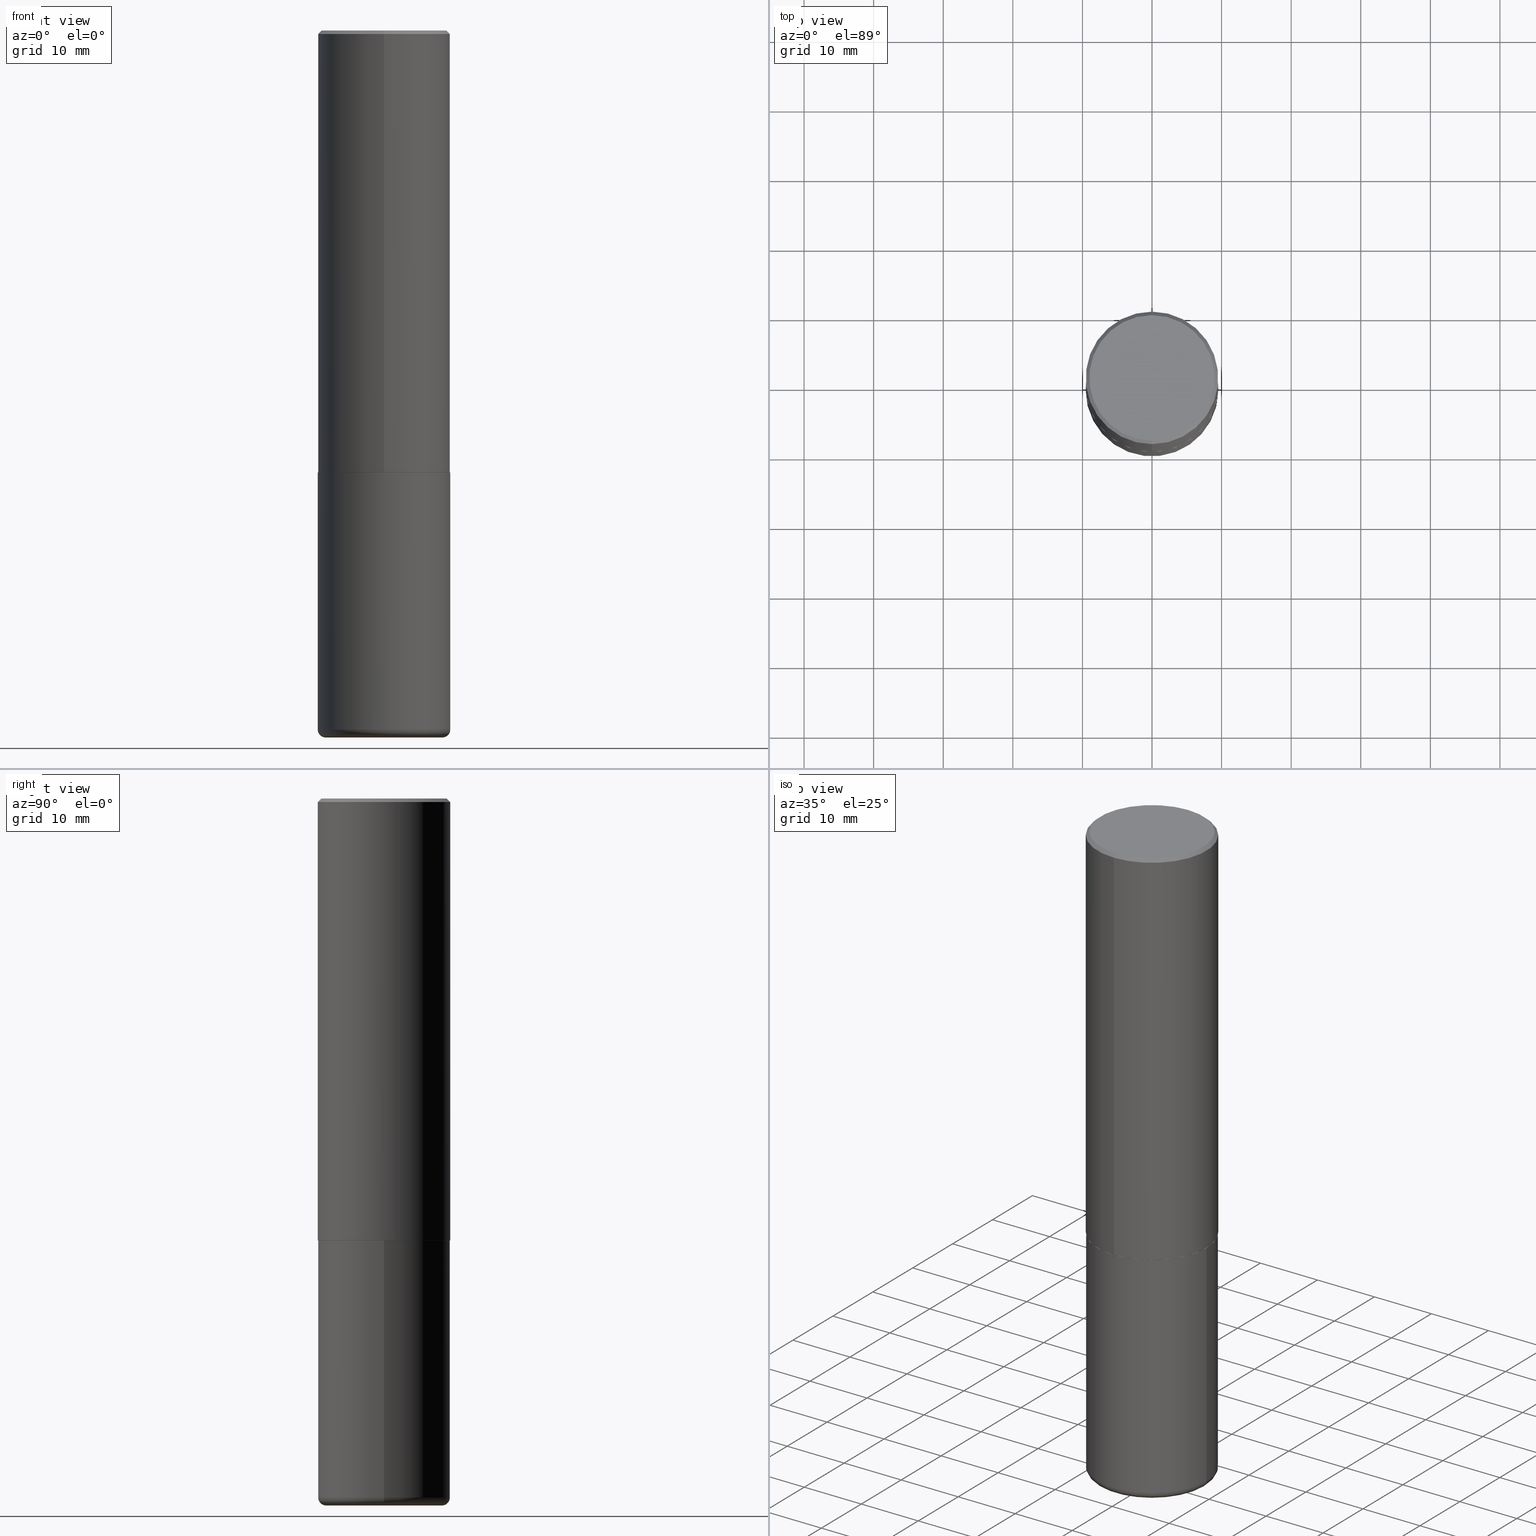
[diagram: canonical four-view strip — front | top / right | iso, engineering-drawing reading convention]
A machine part, canonical four-view strip (front | top / right | iso — engineering-drawing reading convention). The complete STEP part file that produces these views, byte-faithful:
ISO-10303-21;
HEADER;
FILE_DESCRIPTION (( 'STEP AP203' ),
    '1' );
FILE_NAME ('38346.STEP',
    '2024-03-03T00:01:08',
    ( '' ),
    ( '' ),
    'SwSTEP 2.0',
    'SolidWorks 2023',
    '' );
FILE_SCHEMA (( 'CONFIG_CONTROL_DESIGN' ));
ENDSEC;

DATA;
#1 = ORIENTED_EDGE ( 'NONE', *, *, #35, .T. ) ;
#2 = VERTEX_POINT ( 'NONE', #404 ) ;
#3 = ORIENTED_EDGE ( 'NONE', *, *, #188, .T. ) ;
#4 = AXIS2_PLACEMENT_3D ( 'NONE', #88, #50, #18 ) ;
#5 = AXIS2_PLACEMENT_3D ( 'NONE', #157, #190, #75 ) ;
#6 = EDGE_CURVE ( 'NONE', #2, #358, #401, .T. ) ;
#7 = EDGE_LOOP ( 'NONE', ( #323, #64, #326, #268 ) ) ;
#8 = VERTEX_POINT ( 'NONE', #113 ) ;
#9 = CARTESIAN_POINT ( 'NONE',  ( 2.618611004132350411E-15, 0.3749999999999999445, -0.02000000000000139513 ) ) ;
#10 = CARTESIAN_POINT ( 'NONE',  ( 2.618611004132350411E-15, 0.3749999999999999445, -0.02000000000000139513 ) ) ;
#11 = CIRCLE ( 'NONE', #20, 0.3300000000000000155 ) ;
#12 = MECHANICAL_CONTEXT ( 'NONE', #218, 'mechanical' ) ;
#13 = CARTESIAN_POINT ( 'NONE',  ( 0.000000000000000000, 0.000000000000000000, 0.000000000000000000 ) ) ;
#14 = DIRECTION ( 'NONE',  ( -6.982962677686266711E-15, -1.000000000000000000, 2.921762560068730595E-15 ) ) ;
#15 = DIRECTION ( 'NONE',  ( 1.000000000000000000, -6.982962677686257244E-15, 0.000000000000000000 ) ) ;
#16 = EDGE_CURVE ( 'NONE', #68, #153, #11, .T. ) ;
#17 = DIMENSIONAL_EXPONENTS ( 1.000000000000000000, 0.000000000000000000, 0.000000000000000000, 0.000000000000000000, 0.000000000000000000, 0.000000000000000000, 0.000000000000000000 ) ;
#18 = DIRECTION ( 'NONE',  ( -6.982962677686265922E-15, -1.000000000000000000, 3.490407148774155485E-15 ) ) ;
#19 = DIRECTION ( 'NONE',  ( -2.446218909101186334E-29, 3.490407148774155485E-15, 1.000000000000000000 ) ) ;
#20 = AXIS2_PLACEMENT_3D ( 'NONE', #45, #111, #303 ) ;
#21 = DIRECTION ( 'NONE',  ( -2.445468806185136597E-29, 3.491481338843145583E-15, 1.000000000000000000 ) ) ;
#22 = LOCAL_TIME ( 19, 1, 8.000000000000000000, #174 ) ;
#23 = DIRECTION ( 'NONE',  ( -2.446218909101186334E-29, 3.490407148774155485E-15, 1.000000000000000000 ) ) ;
#24 = DIRECTION ( 'NONE',  ( 2.438088387897960049E-29, -3.491481338843145188E-15, -1.000000000000000000 ) ) ;
#25 = APPROVAL ( #89, 'UNSPECIFIED' ) ;
#26 = DIRECTION ( 'NONE',  ( -2.445468806185136597E-29, 3.491481338843145583E-15, 1.000000000000000000 ) ) ;
#27 = CARTESIAN_POINT ( 'NONE',  ( 1.440645524434531058E-28, -7.343263552550124896E-15, -4.000000000000000000 ) ) ;
#28 = CARTESIAN_POINT ( 'NONE',  ( 0.000000000000000000, 0.000000000000000000, 0.000000000000000000 ) ) ;
#29 = CALENDAR_DATE ( 2024, 2, 3 ) ;
#30 = CIRCLE ( 'NONE', #316, 0.3750000000000000555 ) ;
#31 = LINE ( 'NONE', #124, #62 ) ;
#32 = PERSON_AND_ORGANIZATION ( #97, #140 ) ;
#33 = DIRECTION ( 'NONE',  ( -1.000000000000000000, 6.982962677686265922E-15, -4.876176775795935793E-29 ) ) ;
#34 = AXIS2_PLACEMENT_3D ( 'NONE', #311, #258, #347 ) ;
#35 = EDGE_CURVE ( 'NONE', #160, #394, #69, .T. ) ;
#36 = LOCAL_TIME ( 19, 1, 8.000000000000000000, #243 ) ;
#37 = VERTEX_POINT ( 'NONE', #10 ) ;
#38 = ORIENTED_EDGE ( 'NONE', *, *, #179, .F. ) ;
#39 = VERTEX_POINT ( 'NONE', #77 ) ;
#40 = VECTOR ( 'NONE', #275, 39.37007874015748143 ) ;
#41 = EDGE_LOOP ( 'NONE', ( #409, #397, #266, #392 ) ) ;
#42 = CARTESIAN_POINT ( 'NONE',  ( 4.892437818202393302E-31, -6.980814297548341687E-17, -0.02000000000000008715 ) ) ;
#43 = DIRECTION ( 'NONE',  ( 7.105427357601001859E-15, 1.000000000000000000, -3.491481338843145583E-15 ) ) ;
#44 = APPLICATION_PROTOCOL_DEFINITION ( 'international standard', 'config_control_design', 1994, #218 ) ;
#45 = CARTESIAN_POINT ( 'NONE',  ( 9.781875224740545266E-29, -1.396592535537258075E-14, -3.999999999999999556 ) ) ;
#46 = UNCERTAINTY_MEASURE_WITH_UNIT (LENGTH_MEASURE( 1.000000000000000082E-05 ), #363, 'distance_accuracy_value', 'NONE');
#47 = PRODUCT_DEFINITION ( 'UNKNOWN', '', #325, #196 ) ;
#48 = CIRCLE ( 'NONE', #333, 0.3750000000000002776 ) ;
#49 = CARTESIAN_POINT ( 'NONE',  ( -0.3749999999999999445, -1.114427343602426500E-14, -3.954999999999999627 ) ) ;
#50 = DIRECTION ( 'NONE',  ( -2.446218909101186334E-29, 3.490407148774155485E-15, 1.000000000000000000 ) ) ;
#51 = LINE ( 'NONE', #170, #223 ) ;
#52 = DIRECTION ( 'NONE',  ( 6.982962677686265922E-15, 1.000000000000000000, -3.494488891895536035E-15 ) ) ;
#53 = DIRECTION ( 'NONE',  ( -2.446218909101186334E-29, 3.490407148774155485E-15, 1.000000000000000000 ) ) ;
#54 = PERSON_AND_ORGANIZATION ( #97, #140 ) ;
#55 = AXIS2_PLACEMENT_3D ( 'NONE', #171, #43, #274 ) ;
#56 = CIRCLE ( 'NONE', #5, 0.3750000000000000555 ) ;
#57 = APPLICATION_PROTOCOL_DEFINITION ( 'international standard', 'config_control_design', 1994, #199 ) ;
#58 = CALENDAR_DATE ( 2024, 2, 3 ) ;
#59 = APPROVAL_STATUS ( 'not_yet_approved' ) ;
#60 = ADVANCED_FACE ( 'NONE', ( #203 ), #343, .T. ) ;
#61 = CARTESIAN_POINT ( 'NONE',  ( 2.478951750578626181E-15, 0.3550000000000002598, -1.371609093745184381E-15 ) ) ;
#62 = VECTOR ( 'NONE', #414, 39.37007874015748143 ) ;
#63 = CIRCLE ( 'NONE', #263, 0.3750000000000000555 ) ;
#64 = ORIENTED_EDGE ( 'NONE', *, *, #386, .T. ) ;
#65 = ORIENTED_EDGE ( 'NONE', *, *, #346, .T. ) ;
#66 = EDGE_CURVE ( 'NONE', #8, #299, #156, .T. ) ;
#67 = ORIENTED_EDGE ( 'NONE', *, *, #415, .T. ) ;
#68 = VERTEX_POINT ( 'NONE', #211 ) ;
#69 = CIRCLE ( 'NONE', #289, 0.3739999999999999991 ) ;
#70 = CARTESIAN_POINT ( 'NONE',  ( 6.483192248959793905E-45, -9.250595066719118931E-31, -2.650291118607169846E-16 ) ) ;
#71 = ORIENTED_EDGE ( 'NONE', *, *, #403, .T. ) ;
#72 = FACE_OUTER_BOUND ( 'NONE', #238, .T. ) ;
#73 = DIRECTION ( 'NONE',  ( 2.446218909101186334E-29, -3.490407148774155485E-15, -1.000000000000000000 ) ) ;
#74 = PERSON_AND_ORGANIZATION ( #97, #140 ) ;
#75 = DIRECTION ( 'NONE',  ( -6.982962677686265922E-15, -1.000000000000000000, 3.494488891895536035E-15 ) ) ;
#76 = CARTESIAN_POINT ( 'NONE',  ( 0.000000000000000000, 0.000000000000000000, 0.000000000000000000 ) ) ;
#77 = CARTESIAN_POINT ( 'NONE',  ( -2.618611004132290852E-15, -0.3750000000000090483, -2.498999999999998778 ) ) ;
#78 =( NAMED_UNIT ( * ) SI_UNIT ( $, .STERADIAN. ) SOLID_ANGLE_UNIT ( ) );
#79 = VECTOR ( 'NONE', #87, 39.37007874015748854 ) ;
#80 = CYLINDRICAL_SURFACE ( 'NONE', #227, 0.3750000000000001665 ) ;
#81 = FACE_OUTER_BOUND ( 'NONE', #158, .T. ) ;
#82 = PERSON_AND_ORGANIZATION_ROLE ( 'design_supplier' ) ;
#83 = EDGE_CURVE ( 'NONE', #153, #228, #194, .T. ) ;
#84 = DIRECTION ( 'NONE',  ( 1.000000000000000000, -6.982962677686267499E-15, 0.000000000000000000 ) ) ;
#85 = PLANE ( 'NONE',  #257 ) ;
#86 = PERSON_AND_ORGANIZATION ( #97, #140 ) ;
#87 = DIRECTION ( 'NONE',  ( 5.024295867787889629E-15, 0.7071067811865257013, 0.7071067811865691111 ) ) ;
#88 = CARTESIAN_POINT ( 'NONE',  ( 6.483192248959793905E-45, -9.250595066719118931E-31, -2.650291118607169846E-16 ) ) ;
#89 = APPROVAL_STATUS ( 'not_yet_approved' ) ;
#90 = AXIS2_PLACEMENT_3D ( 'NONE', #28, #150, #284 ) ;
#91 = DIRECTION ( 'NONE',  ( 2.438088387897960049E-29, -3.491481338843145188E-15, -1.000000000000000000 ) ) ;
#92 = APPROVAL_DATE_TIME ( #385, #25 ) ;
#93 = DIRECTION ( 'NONE',  ( -2.446218909101186334E-29, 3.490407148774155485E-15, 1.000000000000000000 ) ) ;
#94 = CC_DESIGN_DATE_AND_TIME_ASSIGNMENT ( #177, #183, ( #242 ) ) ;
#95 = COORDINATED_UNIVERSAL_TIME_OFFSET ( 5, 0, .BEHIND. ) ;
#96 = PLANE ( 'NONE',  #366 ) ;
#97 = PERSON ( 'UNSPECIFIED', 'UNSPECIFIED', 'UNSPECIFIED', ('UNSPECIFIED'), ('UNSPECIFIED'), ('UNSPECIFIED') ) ;
#98 = CARTESIAN_POINT ( 'NONE',  ( 6.115547272752966956E-29, -8.726017871935389897E-15, -2.500000000000000000 ) ) ;
#99 = CARTESIAN_POINT ( 'NONE',  ( 2.657429831742835431E-15, 0.3739999999999912839, -2.500000000000001332 ) ) ;
#100 = CONICAL_SURFACE ( 'NONE', #145, 0.3750000000000000555, 0.7853981633974473908 ) ;
#101 = LINE ( 'NONE', #390, #350 ) ;
#102 = EDGE_LOOP ( 'NONE', ( #231, #105 ) ) ;
#103 = CONICAL_SURFACE ( 'NONE', #115, 0.3739999999999999991, 0.7853981633974141952 ) ;
#104 = ORIENTED_EDGE ( 'NONE', *, *, #346, .F. ) ;
#105 = ORIENTED_EDGE ( 'NONE', *, *, #285, .F. ) ;
#106 = ORIENTED_EDGE ( 'NONE', *, *, #188, .F. ) ;
#107 = ORIENTED_EDGE ( 'NONE', *, *, #255, .T. ) ;
#108 = EDGE_CURVE ( 'NONE', #358, #234, #30, .T. ) ;
#109 = CARTESIAN_POINT ( 'NONE',  ( -0.3750000000000000555, -8.604220762015875546E-15, -2.499999999999999556 ) ) ;
#110 = CARTESIAN_POINT ( 'NONE',  ( 6.115547272752966956E-29, -8.726017871935389897E-15, -2.500000000000000000 ) ) ;
#111 = DIRECTION ( 'NONE',  ( -2.445468806185136597E-29, 3.491481338843145583E-15, 1.000000000000000000 ) ) ;
#112 = DIRECTION ( 'NONE',  ( -2.446218909101186334E-29, 3.490407148774155485E-15, 1.000000000000000000 ) ) ;
#113 = CARTESIAN_POINT ( 'NONE',  ( 2.548781377355488296E-15, 0.3550000000000002598, -1.504123649675543292E-15 ) ) ;
#114 = EDGE_CURVE ( 'NONE', #39, #144, #131, .T. ) ;
#115 = AXIS2_PLACEMENT_3D ( 'NONE', #416, #254, #417 ) ;
#116 = FACE_OUTER_BOUND ( 'NONE', #362, .T. ) ;
#117 = FACE_OUTER_BOUND ( 'NONE', #396, .T. ) ;
#118 = PERSON_AND_ORGANIZATION ( #97, #140 ) ;
#119 = ORIENTED_EDGE ( 'NONE', *, *, #83, .F. ) ;
#120 = PERSON_AND_ORGANIZATION ( #97, #140 ) ;
#121 = TOROIDAL_SURFACE ( 'NONE', #34, 0.3300000000000000155, 0.04499999999999982486 ) ;
#122 = ADVANCED_FACE ( 'NONE', ( #81 ), #269, .F. ) ;
#123 = CALENDAR_DATE ( 2024, 2, 3 ) ;
#124 = CARTESIAN_POINT ( 'NONE',  ( -2.572686749164323547E-15, -0.3750000000000001110, -0.01999999999999877570 ) ) ;
#125 = FACE_OUTER_BOUND ( 'NONE', #290, .T. ) ;
#126 = LINE ( 'NONE', #389, #383 ) ;
#127 = CIRCLE ( 'NONE', #335, 0.3750000000000000555 ) ;
#128 = ORIENTED_EDGE ( 'NONE', *, *, #6, .F. ) ;
#129 = ORIENTED_EDGE ( 'NONE', *, *, #108, .F. ) ;
#130 = ADVANCED_FACE ( 'NONE', ( #339 ), #240, .T. ) ;
#131 = CIRCLE ( 'NONE', #399, 0.3750000000000002776 ) ;
#132 = EDGE_LOOP ( 'NONE', ( #301, #297, #371, #104 ) ) ;
#133 = ORIENTED_EDGE ( 'NONE', *, *, #403, .F. ) ;
#134 = DIRECTION ( 'NONE',  ( 0.000000000000000000, 0.000000000000000000, 1.000000000000000000 ) ) ;
#135 = ORIENTED_EDGE ( 'NONE', *, *, #204, .F. ) ;
#136 = ADVANCED_FACE ( 'NONE', ( #117 ), #85, .F. ) ;
#137 = CARTESIAN_POINT ( 'NONE',  ( 9.671829128462214433E-29, -1.380880869512464070E-14, -3.954999999999999627 ) ) ;
#138 = AXIS2_PLACEMENT_3D ( 'NONE', #27, #91, #33 ) ;
#139 = DIRECTION ( 'NONE',  ( -6.982962677686266711E-15, -1.000000000000000000, 2.913971193241878794E-15 ) ) ;
#140 = ORGANIZATION ( 'UNSPECIFIED', 'UNSPECIFIED', '' ) ;
#141 = DIRECTION ( 'NONE',  ( 1.000000000000000000, -6.982962677686265922E-15, 4.876176775795935793E-29 ) ) ;
#142 = CC_DESIGN_PERSON_AND_ORGANIZATION_ASSIGNMENT ( #74, #281, ( #327 ) ) ;
#143 =( NAMED_UNIT ( * ) PLANE_ANGLE_UNIT ( ) SI_UNIT ( $, .RADIAN. ) );
#144 = VERTEX_POINT ( 'NONE', #201 ) ;
#145 = AXIS2_PLACEMENT_3D ( 'NONE', #42, #368, #166 ) ;
#146 = PERSON_AND_ORGANIZATION ( #97, #140 ) ;
#147 = DIRECTION ( 'NONE',  ( 1.000000000000000000, -6.982962677686266711E-15, 0.000000000000000000 ) ) ;
#148 = DIRECTION ( 'NONE',  ( -1.000000000000000000, 6.982962677686265922E-15, -4.876176775795935793E-29 ) ) ;
#149 = CARTESIAN_POINT ( 'NONE',  ( 6.113672015462840371E-29, -8.728703347107863365E-15, -2.499999999999999556 ) ) ;
#150 = DIRECTION ( 'NONE',  ( -2.445468806185136597E-29, 3.491481338843145583E-15, 1.000000000000000000 ) ) ;
#151 = APPROVAL_ROLE ( '' ) ;
#152 = CIRCLE ( 'NONE', #395, 0.3300000000000000155 ) ;
#153 = VERTEX_POINT ( 'NONE', #155 ) ;
#154 = ADVANCED_FACE ( 'NONE', ( #216 ), #121, .T. ) ;
#155 = CARTESIAN_POINT ( 'NONE',  ( -0.3300000000000000155, -1.138270388169425732E-14, -3.999999999999999556 ) ) ;
#156 = CIRCLE ( 'NONE', #4, 0.3550000000000002598 ) ;
#157 = CARTESIAN_POINT ( 'NONE',  ( 4.892437818202393302E-31, -6.980814297548341687E-17, -0.02000000000000008715 ) ) ;
#158 = EDGE_LOOP ( 'NONE', ( #135, #280 ) ) ;
#159 = EDGE_CURVE ( 'NONE', #394, #39, #101, .T. ) ;
#160 = VERTEX_POINT ( 'NONE', #251 ) ;
#161 = CIRCLE ( 'NONE', #355, 0.3739999999999999991 ) ;
#162 = CIRCLE ( 'NONE', #309, 0.04499999999999979017 ) ;
#163 = ORIENTED_EDGE ( 'NONE', *, *, #108, .T. ) ;
#164 = ADVANCED_FACE ( 'NONE', ( #344 ), #181, .T. ) ;
#165 = ORIENTED_EDGE ( 'NONE', *, *, #230, .T. ) ;
#166 = DIRECTION ( 'NONE',  ( 6.982962677686265922E-15, 1.000000000000000000, -3.494488891895536035E-15 ) ) ;
#167 = DIRECTION ( 'NONE',  ( 1.000000000000000000, -6.982962677686265922E-15, 4.883557194083112901E-29 ) ) ;
#168 = DIRECTION ( 'NONE',  ( -2.445468806185136597E-29, 3.491481338843145583E-15, 1.000000000000000000 ) ) ;
#169 = CIRCLE ( 'NONE', #186, 0.3550000000000002598 ) ;
#170 = CARTESIAN_POINT ( 'NONE',  ( -0.3750000000000000555, 2.664535259100376091E-15, -1.844600658845589598E-29 ) ) ;
#171 = CARTESIAN_POINT ( 'NONE',  ( -0.3300000000000000155, -1.146401766711630958E-14, -3.954999999999999627 ) ) ;
#172 = CARTESIAN_POINT ( 'NONE',  ( 6.113101053843864340E-29, -8.722527464786612949E-15, -2.498999999999999666 ) ) ;
#173 = CARTESIAN_POINT ( 'NONE',  ( 6.115547272752966956E-29, -8.726017871935389897E-15, -2.500000000000000000 ) ) ;
#174 = COORDINATED_UNIVERSAL_TIME_OFFSET ( 5, 0, .BEHIND. ) ;
#175 = CARTESIAN_POINT ( 'NONE',  ( -2.504081769186609399E-15, -0.3550000000000002598, 9.740654259541092244E-16 ) ) ;
#176 = AXIS2_PLACEMENT_3D ( 'NONE', #331, #168, #141 ) ;
#177 = DATE_AND_TIME ( #29, #36 ) ;
#178 = LOCAL_TIME ( 19, 1, 8.000000000000000000, #342 ) ;
#179 = EDGE_CURVE ( 'NONE', #226, #37, #405, .T. ) ;
#180 = DATE_AND_TIME ( #58, #233 ) ;
#181 = PLANE ( 'NONE',  #138 ) ;
#182 = FACE_OUTER_BOUND ( 'NONE', #287, .T. ) ;
#183 = DATE_TIME_ROLE ( 'classification_date' ) ;
#184 = ADVANCED_FACE ( 'NONE', ( #182 ), #313, .T. ) ;
#185 = AXIS2_PLACEMENT_3D ( 'NONE', #270, #134, #267 ) ;
#186 = AXIS2_PLACEMENT_3D ( 'NONE', #70, #23, #370 ) ;
#187 = CC_DESIGN_APPROVAL ( #25, ( #47 ) ) ;
#188 = EDGE_CURVE ( 'NONE', #299, #226, #31, .T. ) ;
#189 = ORIENTED_EDGE ( 'NONE', *, *, #159, .T. ) ;
#190 = DIRECTION ( 'NONE',  ( -2.446218909101186334E-29, 3.490407148774155485E-15, 1.000000000000000000 ) ) ;
#191 = ORIENTED_EDGE ( 'NONE', *, *, #179, .T. ) ;
#192 = EDGE_LOOP ( 'NONE', ( #106, #296, #107, #65 ) ) ;
#193 = ADVANCED_FACE ( 'NONE', ( #286 ), #103, .T. ) ;
#194 = CIRCLE ( 'NONE', #55, 0.04499999999999979017 ) ;
#195 = EDGE_LOOP ( 'NONE', ( #293, #3, #191, #320 ) ) ;
#196 = DESIGN_CONTEXT ( 'detailed design', #199, 'design' ) ;
#197 = DIRECTION ( 'NONE',  ( -2.446218909101186334E-29, 3.490407148774155485E-15, 1.000000000000000000 ) ) ;
#198 = ORIENTED_EDGE ( 'NONE', *, *, #277, .F. ) ;
#199 = APPLICATION_CONTEXT ( 'configuration controlled 3d designs of mechanical parts and assemblies' ) ;
#200 = CYLINDRICAL_SURFACE ( 'NONE', #176, 0.3750000000000000555 ) ;
#201 = CARTESIAN_POINT ( 'NONE',  ( 2.664535259100408040E-15, 0.3749999999999915623, -2.499000000000000998 ) ) ;
#202 = CARTESIAN_POINT ( 'NONE',  ( 9.781875224740545266E-29, -1.396592535537258075E-14, -3.999999999999999556 ) ) ;
#203 = FACE_OUTER_BOUND ( 'NONE', #321, .T. ) ;
#204 = EDGE_CURVE ( 'NONE', #394, #160, #161, .T. ) ;
#205 = CARTESIAN_POINT ( 'NONE',  ( -2.572686749164323547E-15, -0.3750000000000001110, -0.01999999999999877570 ) ) ;
#206 = DIRECTION ( 'NONE',  ( -2.446218909101186054E-29, 3.490407148774155485E-15, 1.000000000000000000 ) ) ;
#207 = DATE_TIME_ROLE ( 'creation_date' ) ;
#208 = DIRECTION ( 'NONE',  ( -6.982962677686266711E-15, -1.000000000000000000, 3.490407148774155091E-15 ) ) ;
#209 = CALENDAR_DATE ( 2024, 2, 3 ) ;
#210 = FACE_OUTER_BOUND ( 'NONE', #41, .T. ) ;
#211 = CARTESIAN_POINT ( 'NONE',  ( 0.3300000000000000155, -1.627030303900904751E-14, -3.999999999999999556 ) ) ;
#212 = SECURITY_CLASSIFICATION_LEVEL ( 'unclassified' ) ;
#213 = AXIS2_PLACEMENT_3D ( 'NONE', #337, #26, #167 ) ;
#214 = DIRECTION ( 'NONE',  ( 6.982962677686265922E-15, 1.000000000000000000, -3.490407148774155485E-15 ) ) ;
#215 = APPROVAL ( #59, 'UNSPECIFIED' ) ;
#216 = FACE_OUTER_BOUND ( 'NONE', #308, .T. ) ;
#217 = PERSON_AND_ORGANIZATION ( #97, #140 ) ;
#218 = APPLICATION_CONTEXT ( 'configuration controlled 3d designs of mechanical parts and assemblies' ) ;
#219 = DIRECTION ( 'NONE',  ( -6.982962677686265922E-15, -1.000000000000000000, 3.494488891895536035E-15 ) ) ;
#220 = EDGE_CURVE ( 'NONE', #144, #37, #126, .T. ) ;
#221 = PERSON_AND_ORGANIZATION_ROLE ( 'creator' ) ;
#222 = DIRECTION ( 'NONE',  ( -2.446218909101186334E-29, 3.490407148774155485E-15, 1.000000000000000000 ) ) ;
#223 = VECTOR ( 'NONE', #298, 39.37007874015748143 ) ;
#224 = LOCAL_TIME ( 19, 1, 8.000000000000000000, #253 ) ;
#225 = CARTESIAN_POINT ( 'NONE',  ( 9.671829128462214433E-29, -1.380880869512464070E-14, -3.954999999999999627 ) ) ;
#226 = VERTEX_POINT ( 'NONE', #205 ) ;
#227 = AXIS2_PLACEMENT_3D ( 'NONE', #76, #197, #402 ) ;
#228 = VERTEX_POINT ( 'NONE', #49 ) ;
#229 = ORIENTED_EDGE ( 'NONE', *, *, #285, .T. ) ;
#230 = EDGE_CURVE ( 'NONE', #228, #234, #51, .T. ) ;
#231 = ORIENTED_EDGE ( 'NONE', *, *, #16, .F. ) ;
#232 = VECTOR ( 'NONE', #249, 39.37007874015748143 ) ;
#233 = LOCAL_TIME ( 19, 1, 8.000000000000000000, #95 ) ;
#234 = VERTEX_POINT ( 'NONE', #109 ) ;
#235 = DIRECTION ( 'NONE',  ( -2.445468806185136597E-29, 3.491481338843145583E-15, 1.000000000000000000 ) ) ;
#236 = DIRECTION ( 'NONE',  ( -6.982962677686265922E-15, -1.000000000000000000, 3.490407148774155485E-15 ) ) ;
#237 = CC_DESIGN_PERSON_AND_ORGANIZATION_ASSIGNMENT ( #120, #82, ( #325 ) ) ;
#238 = EDGE_LOOP ( 'NONE', ( #354, #71, #360, #380 ) ) ;
#239 = CARTESIAN_POINT ( 'NONE',  ( -2.618611004132351200E-15, -0.3750000000000001665, 1.308902680790308800E-15 ) ) ;
#240 = CONICAL_SURFACE ( 'NONE', #262, 0.3750000000000000555, 0.7853981633974473908 ) ;
#241 = CARTESIAN_POINT ( 'NONE',  ( 6.113672015462840371E-29, -8.728703347107863365E-15, -2.499999999999999556 ) ) ;
#242 = SECURITY_CLASSIFICATION ( '', '', #212 ) ;
#243 = COORDINATED_UNIVERSAL_TIME_OFFSET ( 5, 0, .BEHIND. ) ;
#244 = CYLINDRICAL_SURFACE ( 'NONE', #307, 0.3750000000000001665 ) ;
#245 = DIRECTION ( 'NONE',  ( -6.982962677686266711E-15, -1.000000000000000000, 2.921762560068730595E-15 ) ) ;
#246 = PRODUCT_DEFINITION_SHAPE ( 'NONE', 'NONE',  #47 ) ;
#247 = EDGE_CURVE ( 'NONE', #299, #8, #169, .T. ) ;
#248 = LINE ( 'NONE', #99, #79 ) ;
#249 = DIRECTION ( 'NONE',  ( -2.445468806185136877E-29, 3.491481338843145188E-15, 1.000000000000000000 ) ) ;
#250 = DIRECTION ( 'NONE',  ( 1.000000000000000000, -6.982962677686264344E-15, 0.000000000000000000 ) ) ;
#251 = CARTESIAN_POINT ( 'NONE',  ( 2.660982545421636724E-15, 0.3739999999999912839, -2.500000000000001332 ) ) ;
#252 = AXIS2_PLACEMENT_3D ( 'NONE', #272, #53, #245 ) ;
#253 = COORDINATED_UNIVERSAL_TIME_OFFSET ( 5, 0, .BEHIND. ) ;
#254 = DIRECTION ( 'NONE',  ( -2.446218909101186334E-29, 3.490407148774155485E-15, 1.000000000000000000 ) ) ;
#255 = EDGE_CURVE ( 'NONE', #8, #37, #374, .T. ) ;
#256 = ORIENTED_EDGE ( 'NONE', *, *, #365, .T. ) ;
#257 = AXIS2_PLACEMENT_3D ( 'NONE', #341, #24, #148 ) ;
#258 = DIRECTION ( 'NONE',  ( -2.445468806185136597E-29, 3.491481338843145583E-15, 1.000000000000000000 ) ) ;
#259 = ADVANCED_BREP_SHAPE_REPRESENTATION ( '38346', ( #334, #322, #185 ), #400 ) ;
#260 = ORIENTED_EDGE ( 'NONE', *, *, #271, .F. ) ;
#261 = ORIENTED_EDGE ( 'NONE', *, *, #247, .T. ) ;
#262 = AXIS2_PLACEMENT_3D ( 'NONE', #369, #73, #52 ) ;
#263 = AXIS2_PLACEMENT_3D ( 'NONE', #137, #407, #318 ) ;
#264 = ADVANCED_FACE ( 'NONE', ( #273 ), #80, .T. ) ;
#265 = ORIENTED_EDGE ( 'NONE', *, *, #114, .T. ) ;
#266 = ORIENTED_EDGE ( 'NONE', *, *, #365, .F. ) ;
#267 = DIRECTION ( 'NONE',  ( 1.000000000000000000, 0.000000000000000000, 0.000000000000000000 ) ) ;
#268 = ORIENTED_EDGE ( 'NONE', *, *, #159, .F. ) ;
#269 = PLANE ( 'NONE',  #324 ) ;
#270 = CARTESIAN_POINT ( 'NONE',  ( 0.000000000000000000, 0.000000000000000000, 0.000000000000000000 ) ) ;
#271 = EDGE_CURVE ( 'NONE', #39, #226, #338, .T. ) ;
#272 = CARTESIAN_POINT ( 'NONE',  ( 6.115547272752966956E-29, -8.726017871935389897E-15, -2.500000000000000000 ) ) ;
#273 = FACE_OUTER_BOUND ( 'NONE', #132, .T. ) ;
#274 = DIRECTION ( 'NONE',  ( -1.000000000000000000, 7.105427357601023947E-15, 0.000000000000000000 ) ) ;
#275 = DIRECTION ( 'NONE',  ( -2.446218909101186334E-29, 3.490407148774155485E-15, 1.000000000000000000 ) ) ;
#276 = DIRECTION ( 'NONE',  ( 1.000000000000000000, -6.982962677686264344E-15, 0.000000000000000000 ) ) ;
#277 = EDGE_CURVE ( 'NONE', #144, #39, #48, .T. ) ;
#278 = CC_DESIGN_APPROVAL ( #215, ( #242 ) ) ;
#279 = APPROVAL_DATE_TIME ( #180, #215 ) ;
#280 = ORIENTED_EDGE ( 'NONE', *, *, #35, .F. ) ;
#281 = PERSON_AND_ORGANIZATION_ROLE ( 'design_owner' ) ;
#282 = APPROVAL_STATUS ( 'not_yet_approved' ) ;
#283 = CARTESIAN_POINT ( 'NONE',  ( -2.611628041454602471E-15, -0.3740000000000087699, -2.499999999999999112 ) ) ;
#284 = DIRECTION ( 'NONE',  ( 1.000000000000000000, -6.982962677686265922E-15, 4.876176775795935793E-29 ) ) ;
#285 = EDGE_CURVE ( 'NONE', #153, #68, #152, .T. ) ;
#286 = FACE_OUTER_BOUND ( 'NONE', #7, .T. ) ;
#287 = EDGE_LOOP ( 'NONE', ( #256, #165, #129, #128 ) ) ;
#288 = ADVANCED_FACE ( 'NONE', ( #116 ), #244, .T. ) ;
#289 = AXIS2_PLACEMENT_3D ( 'NONE', #173, #19, #14 ) ;
#290 = EDGE_LOOP ( 'NONE', ( #398, #261 ) ) ;
#291 = ORIENTED_EDGE ( 'NONE', *, *, #386, .F. ) ;
#292 = CC_DESIGN_PERSON_AND_ORGANIZATION_ASSIGNMENT ( #146, #312, ( #242 ) ) ;
#293 = ORIENTED_EDGE ( 'NONE', *, *, #247, .F. ) ;
#294 = CLOSED_SHELL ( 'NONE', ( #184, #336, #136, #329, #154, #164 ) ) ;
#295 = CIRCLE ( 'NONE', #351, 0.3750000000000000555 ) ;
#296 = ORIENTED_EDGE ( 'NONE', *, *, #66, .F. ) ;
#297 = ORIENTED_EDGE ( 'NONE', *, *, #277, .T. ) ;
#298 = DIRECTION ( 'NONE',  ( -2.445468806185136877E-29, 3.491481338843145188E-15, 1.000000000000000000 ) ) ;
#299 = VERTEX_POINT ( 'NONE', #175 ) ;
#300 = AXIS2_PLACEMENT_3D ( 'NONE', #317, #93, #219 ) ;
#301 = ORIENTED_EDGE ( 'NONE', *, *, #220, .F. ) ;
#302 = DIRECTION ( 'NONE',  ( -2.446218909101186334E-29, 3.490407148774155485E-15, 1.000000000000000000 ) ) ;
#303 = DIRECTION ( 'NONE',  ( 1.000000000000000000, -6.982962677686267499E-15, 0.000000000000000000 ) ) ;
#304 = ADVANCED_FACE ( 'NONE', ( #328 ), #100, .T. ) ;
#305 = PERSON_AND_ORGANIZATION_ROLE ( 'creator' ) ;
#306 = DIRECTION ( 'NONE',  ( 4.937700262164543309E-15, 0.7071067811865444641, -0.7071067811865505703 ) ) ;
#307 = AXIS2_PLACEMENT_3D ( 'NONE', #13, #377, #208 ) ;
#308 = EDGE_LOOP ( 'NONE', ( #119, #229, #330, #133 ) ) ;
#309 = AXIS2_PLACEMENT_3D ( 'NONE', #391, #359, #15 ) ;
#310 = SHAPE_DEFINITION_REPRESENTATION ( #246, #259 ) ;
#311 = CARTESIAN_POINT ( 'NONE',  ( 9.671829128462214433E-29, -1.380880869512464070E-14, -3.954999999999999627 ) ) ;
#312 = PERSON_AND_ORGANIZATION_ROLE ( 'classification_officer' ) ;
#313 = CYLINDRICAL_SURFACE ( 'NONE', #90, 0.3750000000000000555 ) ;
#314 = CC_DESIGN_PERSON_AND_ORGANIZATION_ASSIGNMENT ( #32, #221, ( #325 ) ) ;
#315 = LENGTH_MEASURE_WITH_UNIT ( LENGTH_MEASURE( 0.02539999999999999897 ), #412 );
#316 = AXIS2_PLACEMENT_3D ( 'NONE', #241, #375, #276 ) ;
#317 = CARTESIAN_POINT ( 'NONE',  ( 4.892437818202393302E-31, -6.980814297548341687E-17, -0.02000000000000008715 ) ) ;
#318 = DIRECTION ( 'NONE',  ( 1.000000000000000000, -6.982962677686266711E-15, 0.000000000000000000 ) ) ;
#319 = CLOSED_SHELL ( 'NONE', ( #193, #288, #130, #304, #264, #60, #122, #382 ) ) ;
#320 = ORIENTED_EDGE ( 'NONE', *, *, #255, .F. ) ;
#321 = EDGE_LOOP ( 'NONE', ( #291, #1, #189, #198 ) ) ;
#322 = MANIFOLD_SOLID_BREP ( 'Body-Move/Copy2[2]', #319 ) ;
#323 = ORIENTED_EDGE ( 'NONE', *, *, #204, .T. ) ;
#324 = AXIS2_PLACEMENT_3D ( 'NONE', #110, #206, #236 ) ;
#325 = PRODUCT_DEFINITION_FORMATION_WITH_SPECIFIED_SOURCE ( 'ANY', '', #327, .NOT_KNOWN. ) ;
#326 = ORIENTED_EDGE ( 'NONE', *, *, #114, .F. ) ;
#327 = PRODUCT ( '38346', '38346', '', ( #12 ) ) ;
#328 = FACE_OUTER_BOUND ( 'NONE', #192, .T. ) ;
#329 = ADVANCED_FACE ( 'NONE', ( #72 ), #200, .T. ) ;
#330 = ORIENTED_EDGE ( 'NONE', *, *, #357, .T. ) ;
#331 = CARTESIAN_POINT ( 'NONE',  ( 0.000000000000000000, 0.000000000000000000, 0.000000000000000000 ) ) ;
#332 = CARTESIAN_POINT ( 'NONE',  ( 0.3750000000000000555, -2.618611004132350016E-15, 1.828566290923476203E-29 ) ) ;
#333 = AXIS2_PLACEMENT_3D ( 'NONE', #172, #302, #340 ) ;
#334 = MANIFOLD_SOLID_BREP ( 'Body-Move/Copy2[1]', #294 ) ;
#335 = AXIS2_PLACEMENT_3D ( 'NONE', #225, #21, #147 ) ;
#336 = ADVANCED_FACE ( 'NONE', ( #210 ), #364, .T. ) ;
#337 = CARTESIAN_POINT ( 'NONE',  ( 9.671829128462214433E-29, -1.380880869512464070E-14, -3.954999999999999627 ) ) ;
#338 = LINE ( 'NONE', #239, #40 ) ;
#339 = FACE_OUTER_BOUND ( 'NONE', #195, .T. ) ;
#340 = DIRECTION ( 'NONE',  ( -6.982962677686266711E-15, -1.000000000000000000, 2.913971193241878794E-15 ) ) ;
#341 = CARTESIAN_POINT ( 'NONE',  ( 6.113672015462840371E-29, -8.728703347107863365E-15, -2.499999999999999556 ) ) ;
#342 = COORDINATED_UNIVERSAL_TIME_OFFSET ( 5, 0, .BEHIND. ) ;
#343 = CONICAL_SURFACE ( 'NONE', #252, 0.3739999999999999991, 0.7853981633974141952 ) ;
#344 = FACE_OUTER_BOUND ( 'NONE', #102, .T. ) ;
#345 = APPROVAL_PERSON_ORGANIZATION ( #217, #393, #381 ) ;
#346 = EDGE_CURVE ( 'NONE', #37, #226, #56, .T. ) ;
#347 = DIRECTION ( 'NONE',  ( 1.000000000000000000, -6.982962677686265922E-15, 4.883557194083112901E-29 ) ) ;
#348 = APPROVAL_DATE_TIME ( #410, #393 ) ;
#349 = DIRECTION ( 'NONE',  ( -6.982962677686266711E-15, -1.000000000000000000, 2.921762560068730595E-15 ) ) ;
#350 = VECTOR ( 'NONE', #353, 39.37007874015748854 ) ;
#351 = AXIS2_PLACEMENT_3D ( 'NONE', #149, #411, #250 ) ;
#352 = CC_DESIGN_PERSON_AND_ORGANIZATION_ASSIGNMENT ( #118, #305, ( #47 ) ) ;
#353 = DIRECTION ( 'NONE',  ( -4.937700262164378437E-15, -0.7071067811865208164, 0.7071067811865739960 ) ) ;
#354 = ORIENTED_EDGE ( 'NONE', *, *, #230, .F. ) ;
#355 = AXIS2_PLACEMENT_3D ( 'NONE', #98, #222, #349 ) ;
#356 = APPROVAL_PERSON_ORGANIZATION ( #54, #215, #151 ) ;
#357 = EDGE_CURVE ( 'NONE', #68, #2, #162, .T. ) ;
#358 = VERTEX_POINT ( 'NONE', #387 ) ;
#359 = DIRECTION ( 'NONE',  ( -6.982962677686266711E-15, -1.000000000000000000, 3.491481338843145583E-15 ) ) ;
#360 = ORIENTED_EDGE ( 'NONE', *, *, #6, .T. ) ;
#361 = PRODUCT_RELATED_PRODUCT_CATEGORY ( 'detail', '', ( #327 ) ) ;
#362 = EDGE_LOOP ( 'NONE', ( #265, #367, #38, #260 ) ) ;
#363 =( CONVERSION_BASED_UNIT ( 'INCH', #315 ) LENGTH_UNIT ( ) NAMED_UNIT ( #17 ) );
#364 = TOROIDAL_SURFACE ( 'NONE', #213, 0.3300000000000000155, 0.04499999999999982486 ) ;
#365 = EDGE_CURVE ( 'NONE', #2, #228, #63, .T. ) ;
#366 = AXIS2_PLACEMENT_3D ( 'NONE', #61, #388, #214 ) ;
#367 = ORIENTED_EDGE ( 'NONE', *, *, #220, .T. ) ;
#368 = DIRECTION ( 'NONE',  ( 2.446218909101186334E-29, -3.490407148774155485E-15, -1.000000000000000000 ) ) ;
#369 = CARTESIAN_POINT ( 'NONE',  ( 4.892437818202393302E-31, -6.980814297548341687E-17, -0.02000000000000008715 ) ) ;
#370 = DIRECTION ( 'NONE',  ( -6.982962677686265922E-15, -1.000000000000000000, 3.490407148774155485E-15 ) ) ;
#371 = ORIENTED_EDGE ( 'NONE', *, *, #271, .T. ) ;
#372 = CC_DESIGN_DATE_AND_TIME_ASSIGNMENT ( #379, #207, ( #47 ) ) ;
#373 = CC_DESIGN_SECURITY_CLASSIFICATION ( #242, ( #325 ) ) ;
#374 = LINE ( 'NONE', #9, #413 ) ;
#375 = DIRECTION ( 'NONE',  ( -2.445468806185136597E-29, 3.491481338843145583E-15, 1.000000000000000000 ) ) ;
#376 = APPROVAL_ROLE ( '' ) ;
#377 = DIRECTION ( 'NONE',  ( -2.446218909101186334E-29, 3.490407148774155485E-15, 1.000000000000000000 ) ) ;
#378 = CARTESIAN_POINT ( 'NONE',  ( 6.113101053843864340E-29, -8.722527464786612949E-15, -2.498999999999999666 ) ) ;
#379 = DATE_AND_TIME ( #123, #178 ) ;
#380 = ORIENTED_EDGE ( 'NONE', *, *, #415, .F. ) ;
#381 = APPROVAL_ROLE ( '' ) ;
#382 = ADVANCED_FACE ( 'NONE', ( #125 ), #96, .F. ) ;
#383 = VECTOR ( 'NONE', #112, 39.37007874015748143 ) ;
#384 = APPROVAL_PERSON_ORGANIZATION ( #86, #25, #376 ) ;
#385 = DATE_AND_TIME ( #209, #22 ) ;
#386 = EDGE_CURVE ( 'NONE', #160, #144, #248, .T. ) ;
#387 = CARTESIAN_POINT ( 'NONE',  ( 0.3750000000000000555, -1.134731435124021180E-14, -2.499999999999999556 ) ) ;
#388 = DIRECTION ( 'NONE',  ( 2.446218909101186054E-29, -3.490407148774155485E-15, -1.000000000000000000 ) ) ;
#389 = CARTESIAN_POINT ( 'NONE',  ( 2.664535259100376486E-15, 0.3750000000000001665, -1.308902680790308800E-15 ) ) ;
#390 = CARTESIAN_POINT ( 'NONE',  ( -2.611628041454602471E-15, -0.3740000000000087699, -2.499999999999999112 ) ) ;
#391 = CARTESIAN_POINT ( 'NONE',  ( 0.3300000000000000155, -1.611318637876110745E-14, -3.954999999999999627 ) ) ;
#392 = ORIENTED_EDGE ( 'NONE', *, *, #357, .F. ) ;
#393 = APPROVAL ( #282, 'UNSPECIFIED' ) ;
#394 = VERTEX_POINT ( 'NONE', #283 ) ;
#395 = AXIS2_PLACEMENT_3D ( 'NONE', #202, #235, #84 ) ;
#396 = EDGE_LOOP ( 'NONE', ( #163, #67 ) ) ;
#397 = ORIENTED_EDGE ( 'NONE', *, *, #83, .T. ) ;
#398 = ORIENTED_EDGE ( 'NONE', *, *, #66, .T. ) ;
#399 = AXIS2_PLACEMENT_3D ( 'NONE', #378, #406, #139 ) ;
#400 =( GEOMETRIC_REPRESENTATION_CONTEXT ( 3 ) GLOBAL_UNCERTAINTY_ASSIGNED_CONTEXT ( ( #46 ) ) GLOBAL_UNIT_ASSIGNED_CONTEXT ( ( #363, #143, #78 ) ) REPRESENTATION_CONTEXT ( 'NONE', 'WORKASPACE' ) );
#401 = LINE ( 'NONE', #332, #232 ) ;
#402 = DIRECTION ( 'NONE',  ( -6.982962677686266711E-15, -1.000000000000000000, 3.490407148774155091E-15 ) ) ;
#403 = EDGE_CURVE ( 'NONE', #228, #2, #127, .T. ) ;
#404 = CARTESIAN_POINT ( 'NONE',  ( 0.3749999999999999445, -1.642741969925699071E-14, -3.954999999999999627 ) ) ;
#405 = CIRCLE ( 'NONE', #300, 0.3750000000000000555 ) ;
#406 = DIRECTION ( 'NONE',  ( -2.446218909101186334E-29, 3.490407148774155485E-15, 1.000000000000000000 ) ) ;
#407 = DIRECTION ( 'NONE',  ( -2.445468806185136597E-29, 3.491481338843145583E-15, 1.000000000000000000 ) ) ;
#408 = CALENDAR_DATE ( 2024, 2, 3 ) ;
#409 = ORIENTED_EDGE ( 'NONE', *, *, #16, .T. ) ;
#410 = DATE_AND_TIME ( #408, #224 ) ;
#411 = DIRECTION ( 'NONE',  ( -2.445468806185136597E-29, 3.491481338843145583E-15, 1.000000000000000000 ) ) ;
#412 =( LENGTH_UNIT ( ) NAMED_UNIT ( * ) SI_UNIT ( $, .METRE. ) );
#413 = VECTOR ( 'NONE', #306, 39.37007874015748143 ) ;
#414 = DIRECTION ( 'NONE',  ( -4.851104656540959542E-15, -0.7071067811865493491, -0.7071067811865456854 ) ) ;
#415 = EDGE_CURVE ( 'NONE', #234, #358, #295, .T. ) ;
#416 = CARTESIAN_POINT ( 'NONE',  ( 6.115547272752966956E-29, -8.726017871935389897E-15, -2.500000000000000000 ) ) ;
#417 = DIRECTION ( 'NONE',  ( -6.982962677686266711E-15, -1.000000000000000000, 2.921762560068730595E-15 ) ) ;
#418 = CC_DESIGN_APPROVAL ( #393, ( #325 ) ) ;
ENDSEC;
END-ISO-10303-21;
